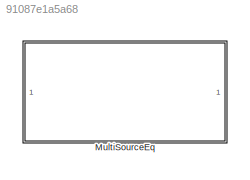
MODEL slx_91087e1a5a68
KIND library
CONFIG AbsTol = auto
CONFIG EnableMultiTasking = off
CONFIG FixedStep = auto
CONFIG MaxStep = auto
CONFIG MinStep = auto
CONFIG RelTol = 1e-3
CONFIG SampleTimeConstraint = Unconstrained
CONFIG SolverName = VariableStepAuto
CONFIG StartTime = 0.0
CONFIG StopTime = 10.0
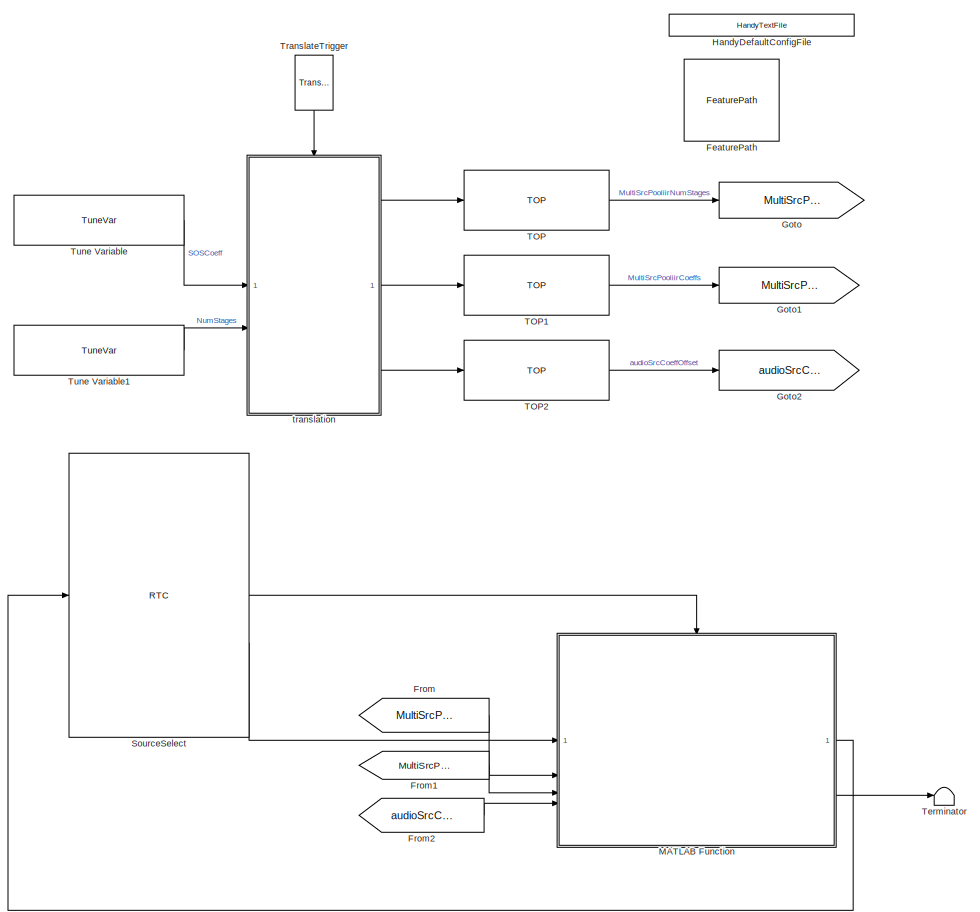
[diagram: MultiSourceEq - part 1/2, left side, full height]
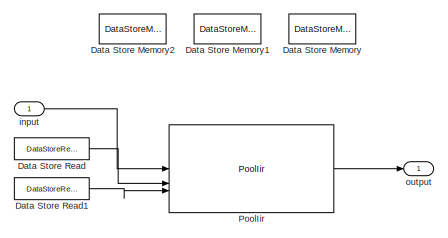
[diagram: MultiSourceEq - part 2/2, middle right region]
BLOCK [SubSystem] MultiSourceEq
BLOCK [DataStoreMemory] MultiSourceEq/Data Store Memory
  DataStoreName = coeffs
  InitialValue = Config.InitialPoolSosCoeff
  OutDataTypeStr = single
  ShowAdditionalParam = off
  SignalType = real
BLOCK [DataStoreMemory] MultiSourceEq/Data Store Memory1
  DataStoreName = NumStages
  InitialValue = Config.InitialPoolNumStages
  OutDataTypeStr = uint32
  ShowAdditionalParam = off
  SignalType = real
BLOCK [DataStoreMemory] MultiSourceEq/Data Store Memory2
  DataStoreName = prevAudioSrc
  InitialValue = 2^32
  OutDataTypeStr = uint32
  ShowAdditionalParam = off
  SignalType = real
BLOCK [DataStoreRead] MultiSourceEq/Data Store Read
  DataStoreName = NumStages
  IndexOptions = Index vector (dialog)
  Indices = 1
  OutputSizes = 1
BLOCK [DataStoreRead] MultiSourceEq/Data Store Read1
  DataStoreName = coeffs
  IndexOptions = Index vector (dialog)
  Indices = 1
  OutputSizes = 1
BLOCK [Reference] MultiSourceEq/FeaturePath  REF=FeaturePath/FeaturePath
  SourceBlock = FeaturePath/FeaturePath
  SourceProductName = Bose Talaria
  SourceType = Talaria Feature Path
BLOCK [From] MultiSourceEq/From
  GotoTag = MultiSrcPooliirNumStages
BLOCK [From] MultiSourceEq/From1
  GotoTag = MultiSrcPooliirCoeffs
BLOCK [From] MultiSourceEq/From2
  GotoTag = audioSrcCoeffOffset
BLOCK [Goto] MultiSourceEq/Goto
  GotoTag = MultiSrcPooliirNumStages
BLOCK [Goto] MultiSourceEq/Goto1
  GotoTag = MultiSrcPooliirCoeffs
BLOCK [Goto] MultiSourceEq/Goto2
  GotoTag = audioSrcCoeffOffset
BLOCK [Reference] MultiSourceEq/HandyDefaultConfigFile  REF=HandyTextFile/HandyTextFile
  SourceBlock = HandyTextFile/HandyTextFile
  SourceProductName = Bose Talaria
  SourceType = Talaria Handy Text File
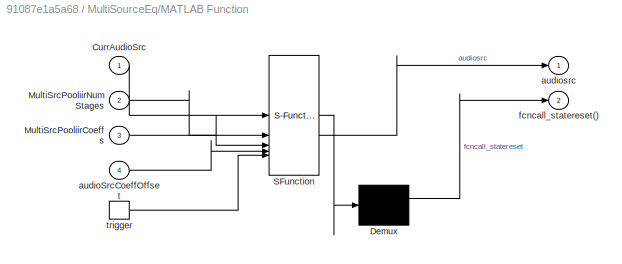
BLOCK [SubSystem] MultiSourceEq/MATLAB Function
  ErrorFcn = Stateflow.Translate.translate
  PermitHierarchicalResolution = ExplicitOnly
  SFBlockType = MATLAB Function
  TreatAsAtomicUnit = on
BLOCK [Demux] MultiSourceEq/MATLAB Function/ Demux 
  Outputs = 1
BLOCK [S-Function] MultiSourceEq/MATLAB Function/ SFunction 
  EnableBusSupport = off
  FunctionName = sf_sfun
  Parameters = num_ent_audio_sources,num_ent_channel,num_stages_per_audio_source
  PortCounts = [5 2]
  SFcnIsStateOwnerBlock = off
  SFunctionDeploymentMode = off
  Tag = Stateflow S-Function 4
BLOCK [Inport] MultiSourceEq/MATLAB Function/CurrAudioSrc
BLOCK [Inport] MultiSourceEq/MATLAB Function/MultiSrcPooliirCoeffs
  Port = 3
BLOCK [Inport] MultiSourceEq/MATLAB Function/MultiSrcPooliirNumStages
  Port = 2
BLOCK [Inport] MultiSourceEq/MATLAB Function/audioSrcCoeffOffset
  Port = 4
BLOCK [Outport] MultiSourceEq/MATLAB Function/audiosrc
BLOCK [Outport] MultiSourceEq/MATLAB Function/fcncall_statereset()
  Port = 2
BLOCK [TriggerPort] MultiSourceEq/MATLAB Function/trigger
  ShowOutputPort = on
  StatesWhenEnabling = held
  TriggerType = function-call
  VariantControl = (inherit)
BLOCK [Reference] MultiSourceEq/PoolIir  REF=PoolIir/PoolIir
  SourceBlock = PoolIir/PoolIir
  SourceType = Bose Pool IIR
BLOCK [Reference] MultiSourceEq/SourceSelect  REF=RTC/RTC
  SourceBlock = RTC/RTC
  SourceProductName = Bose Talaria
  SourceType = Talaria RTC Receive
BLOCK [Reference] MultiSourceEq/TOP  REF=TOP/TOP
  SourceBlock = TOP/TOP
  SourceProductName = Bose Talaria
  SourceType = Talaria Target Overlay Parameter
BLOCK [Reference] MultiSourceEq/TOP1  REF=TOP/TOP
  SourceBlock = TOP/TOP
  SourceProductName = Bose Talaria
  SourceType = Talaria Target Overlay Parameter
BLOCK [Reference] MultiSourceEq/TOP2  REF=TOP/TOP
  SourceBlock = TOP/TOP
  SourceProductName = Bose Talaria
  SourceType = Talaria Target Overlay Parameter
BLOCK [Terminator] MultiSourceEq/Terminator
BLOCK [Reference] MultiSourceEq/TranslateTrigger  REF=TuneVar/TranslateTrigger
  NameLocation = left
  SourceBlock = TuneVar/TranslateTrigger
  SourceProductName = Bose Talaria
  SourceType = Talaria Translate Trigger
BLOCK [Reference] MultiSourceEq/Tune Variable  REF=TuneVar/TuneVar
  SourceBlock = TuneVar/TuneVar
  SourceProductName = Bose Talaria
  SourceType = Talaria Tune Variable
BLOCK [Reference] MultiSourceEq/Tune Variable1  REF=TuneVar/TuneVar
  SourceBlock = TuneVar/TuneVar
  SourceProductName = Bose Talaria
  SourceType = Talaria Tune Variable
BLOCK [Inport] MultiSourceEq/input
BLOCK [Outport] MultiSourceEq/output
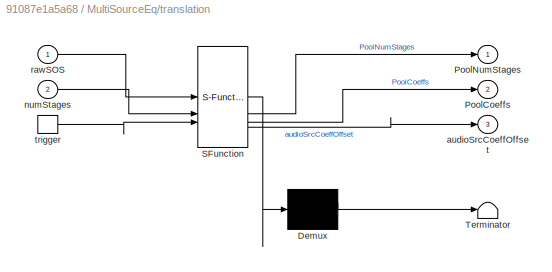
BLOCK [SubSystem] MultiSourceEq/translation
  ErrorFcn = Stateflow.Translate.translate
  PermitHierarchicalResolution = ExplicitOnly
  SFBlockType = MATLAB Function
  TreatAsAtomicUnit = on
BLOCK [Demux] MultiSourceEq/translation/ Demux 
  Outputs = 1
BLOCK [S-Function] MultiSourceEq/translation/ SFunction 
  EnableBusSupport = off
  FunctionName = sf_sfun
  Parameters = max_num_ent_input_eq_stages,num_ent_audio_sources,num_ent_channel
  PortCounts = [3 4]
  SFcnIsStateOwnerBlock = off
  SFunctionDeploymentMode = off
  Tag = Stateflow S-Function 5
BLOCK [Terminator] MultiSourceEq/translation/ Terminator 
BLOCK [Outport] MultiSourceEq/translation/PoolCoeffs
  Port = 2
BLOCK [Outport] MultiSourceEq/translation/PoolNumStages
BLOCK [Outport] MultiSourceEq/translation/audioSrcCoeffOffset
  Port = 3
BLOCK [Inport] MultiSourceEq/translation/numStages
  Port = 2
BLOCK [Inport] MultiSourceEq/translation/rawSOS
BLOCK [TriggerPort] MultiSourceEq/translation/trigger
  ShowOutputPort = on
  StatesWhenEnabling = held
  TriggerType = function-call
  VariantControl = Variant
LINE MultiSourceEq/Data Store Read1:1 -> MultiSourceEq/PoolIir:3
LINE MultiSourceEq/Data Store Read:1 -> MultiSourceEq/PoolIir:2
LINE MultiSourceEq/From1:1 -> MultiSourceEq/MATLAB Function:3
LINE MultiSourceEq/From2:1 -> MultiSourceEq/MATLAB Function:4
LINE MultiSourceEq/From:1 -> MultiSourceEq/MATLAB Function:2
LINE MultiSourceEq/MATLAB Function:1 -> MultiSourceEq/SourceSelect:1
LINE MultiSourceEq/MATLAB Function:2 -> MultiSourceEq/Terminator:1
LINE MultiSourceEq/PoolIir:1 -> MultiSourceEq/output:1
LINE MultiSourceEq/SourceSelect:1 -> MultiSourceEq/MATLAB Function:trigger
LINE MultiSourceEq/SourceSelect:2 -> MultiSourceEq/MATLAB Function:1
LINE MultiSourceEq/TOP1:1 -> MultiSourceEq/Goto1:1
LINE MultiSourceEq/TOP2:1 -> MultiSourceEq/Goto2:1
LINE MultiSourceEq/TOP:1 -> MultiSourceEq/Goto:1
LINE MultiSourceEq/TranslateTrigger:1 -> MultiSourceEq/translation:trigger
LINE MultiSourceEq/Tune Variable1:1 -> MultiSourceEq/translation:2
LINE MultiSourceEq/Tune Variable:1 -> MultiSourceEq/translation:1
LINE MultiSourceEq/input:1 -> MultiSourceEq/PoolIir:1
LINE MultiSourceEq/translation:1 -> MultiSourceEq/TOP:1
LINE MultiSourceEq/translation:2 -> MultiSourceEq/TOP1:1
LINE MultiSourceEq/translation:3 -> MultiSourceEq/TOP2:1
CHART MultiSourceEq/MATLAB Function states=1 transitions=1
  STATE_LABEL 'eML_blk_kernel()'
  STATE_LABEL 'SCRIPT:\nfunction audiosrc = MultiSourceEQConfigure(CurrAudioSrc,MultiSrcPooliirNumStages,MultiSrcPooliirCoeffs,...\n                                           audioSrcCoeffOffset,num_ent_audio_sources,num_ent_channel,num_stages_per_audio_source)\n    %#codegen\n    %% datastore memory to control the audio processing logic:\n    global prevAudioSrc;\n    global NumStages;\n    global coeffs;\n    \n    %% ...<+1849ch>'
CHART MultiSourceEq/translation states=1 transitions=1
  STATE_LABEL 'eML_blk_kernel()'
  STATE_LABEL 'SCRIPT:\nfunction [PoolNumStages, PoolCoeffs,audioSrcCoeffOffset]  = MultiSrcpooliirTranslation(rawSOS, numStages,max_num_ent_input_eq_stages, num_ent_audio_sources, num_ent_channel)\n    % Invoke pool iir translation function to compute num stages & coeffs\n    [PoolNumStages, PoolCoeffs] = pooliirTranslationFcn(rawSOS, numStages,max_num_ent_input_eq_stages);\n    audioSrcCoeffOffset = uint32(ones(1,...<+456ch>'
CHART  states=0 transitions=0
CHART  states=0 transitions=0
